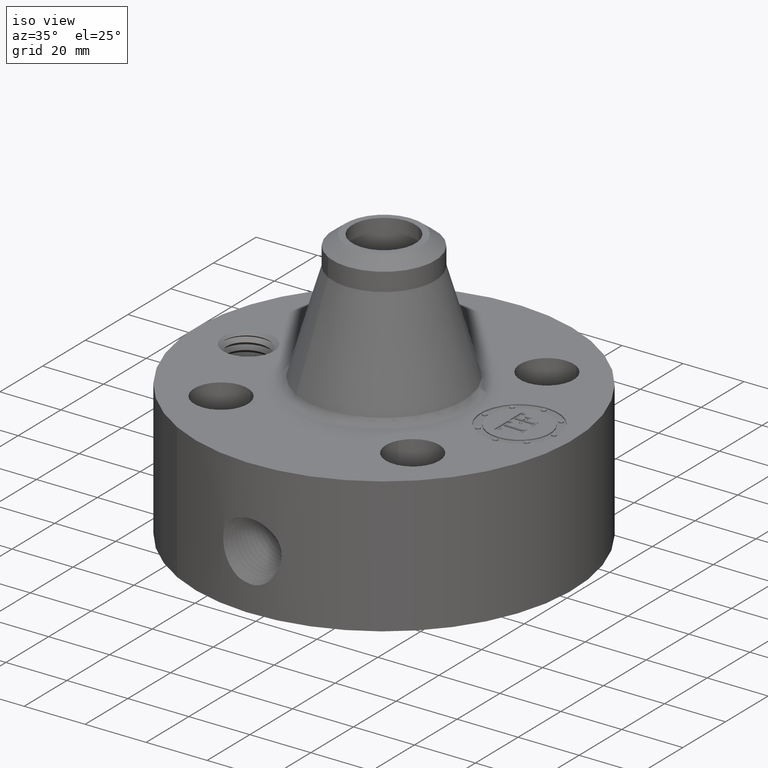
[diagram: clean part render]
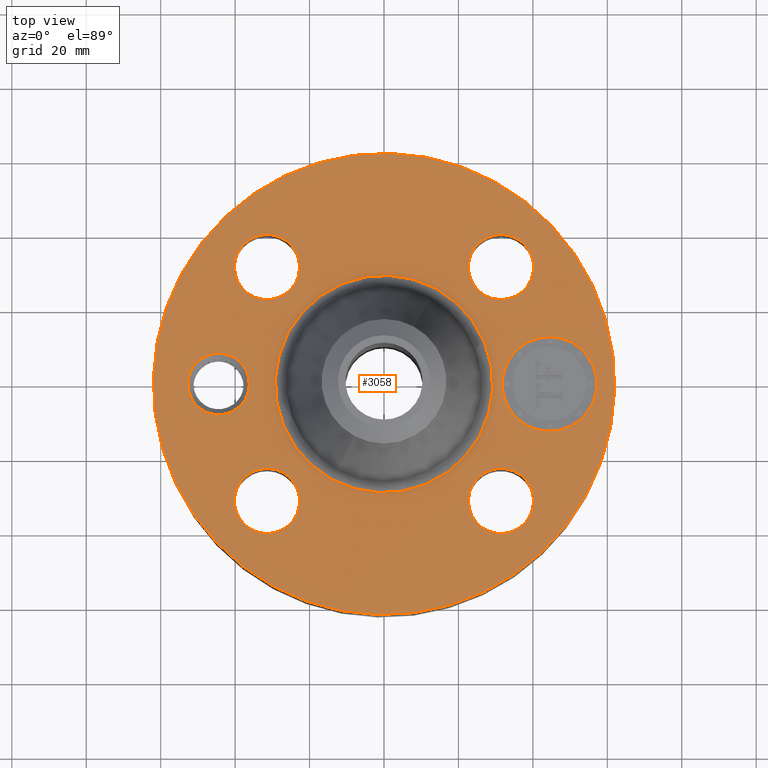
[diagram: tour spotlight — one face highlighted and labeled with its STEP entity id]
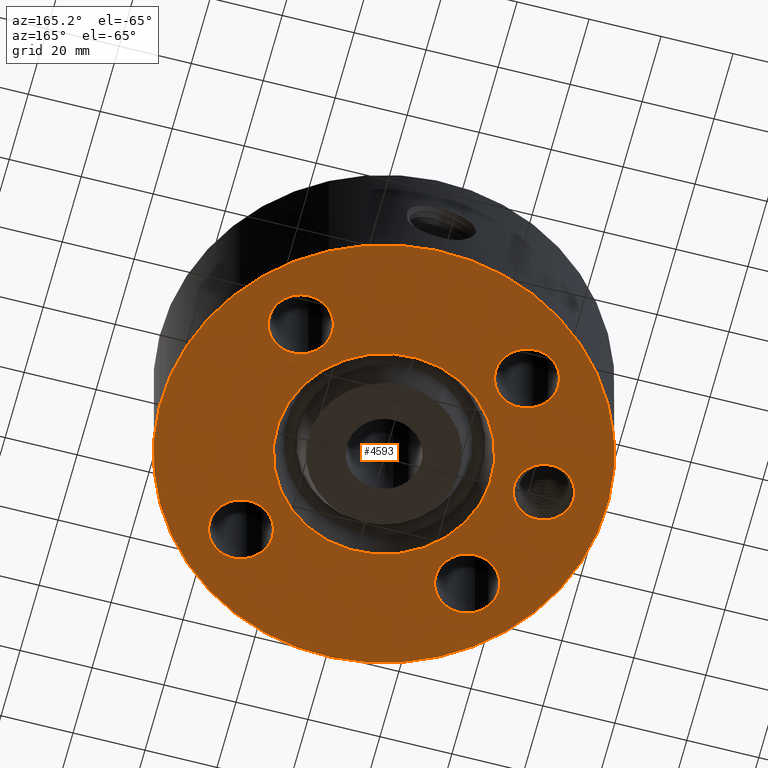
[diagram: tour spotlight — one face highlighted and labeled with its STEP entity id]
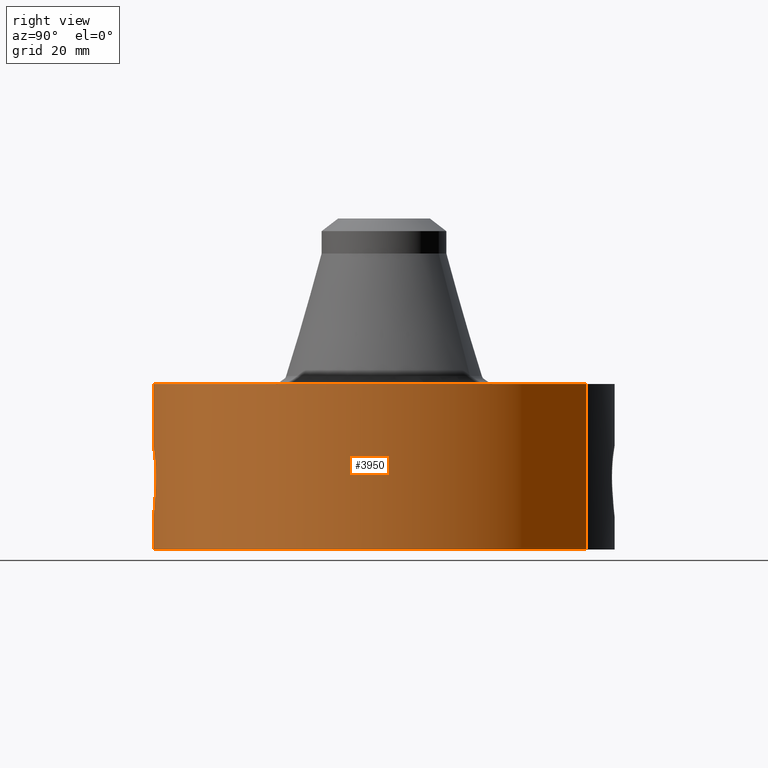
[diagram: tour spotlight — one face highlighted and labeled with its STEP entity id]
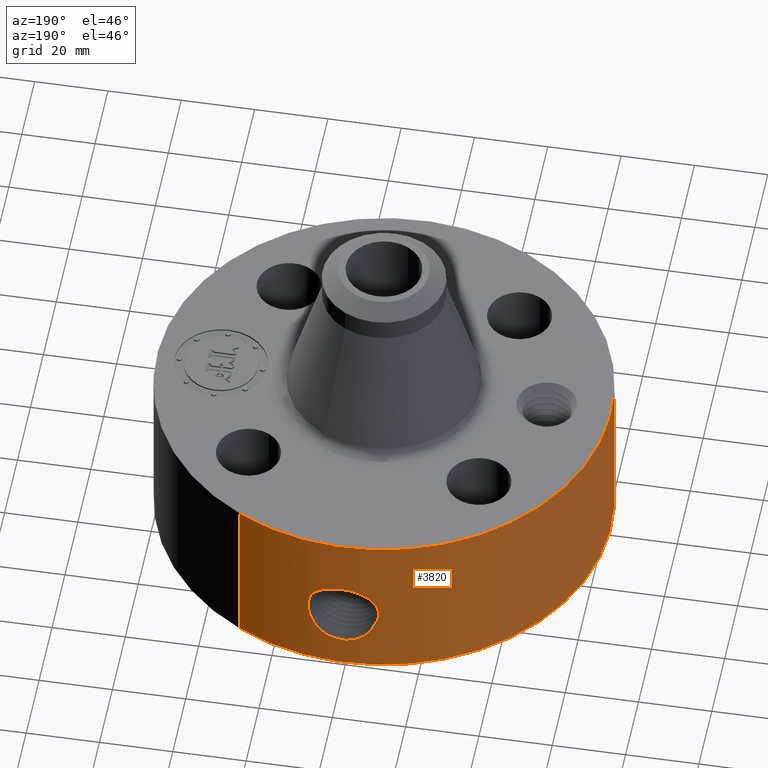
[diagram: tour spotlight — one face highlighted and labeled with its STEP entity id]
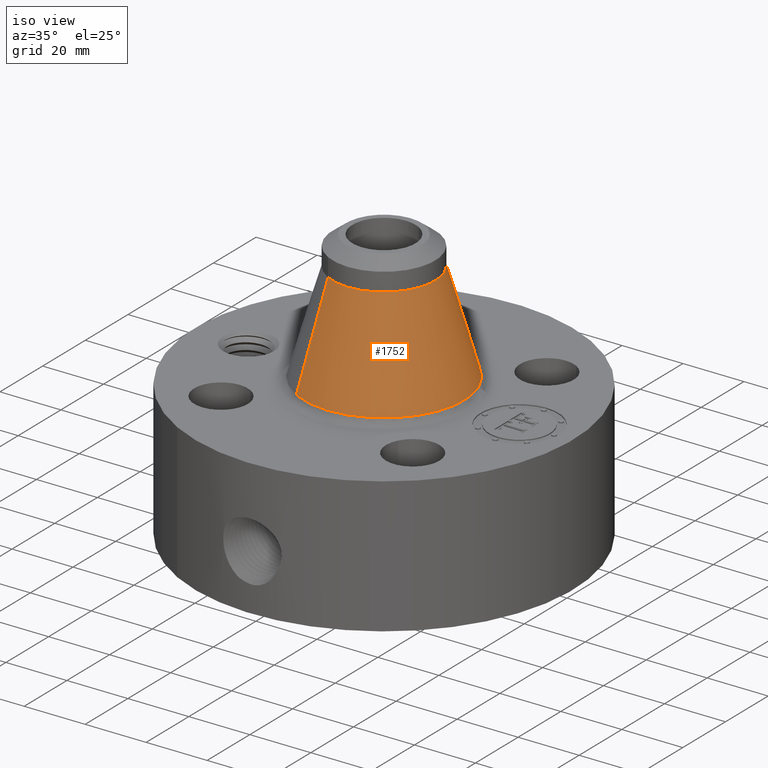
[diagram: tour spotlight — one face highlighted and labeled with its STEP entity id]
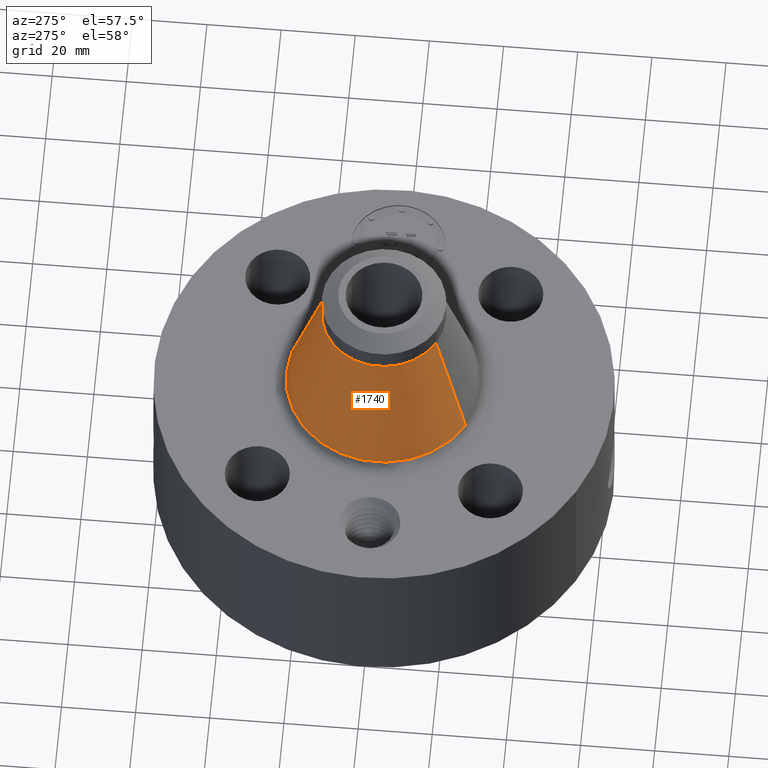
[diagram: tour spotlight — one face highlighted and labeled with its STEP entity id]
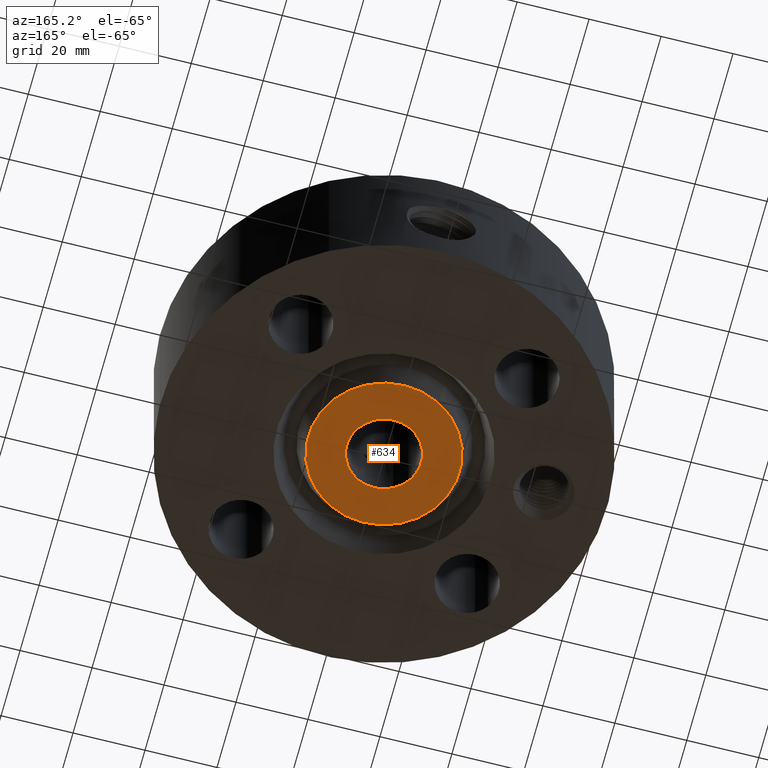
[diagram: tour spotlight — one face highlighted and labeled with its STEP entity id]
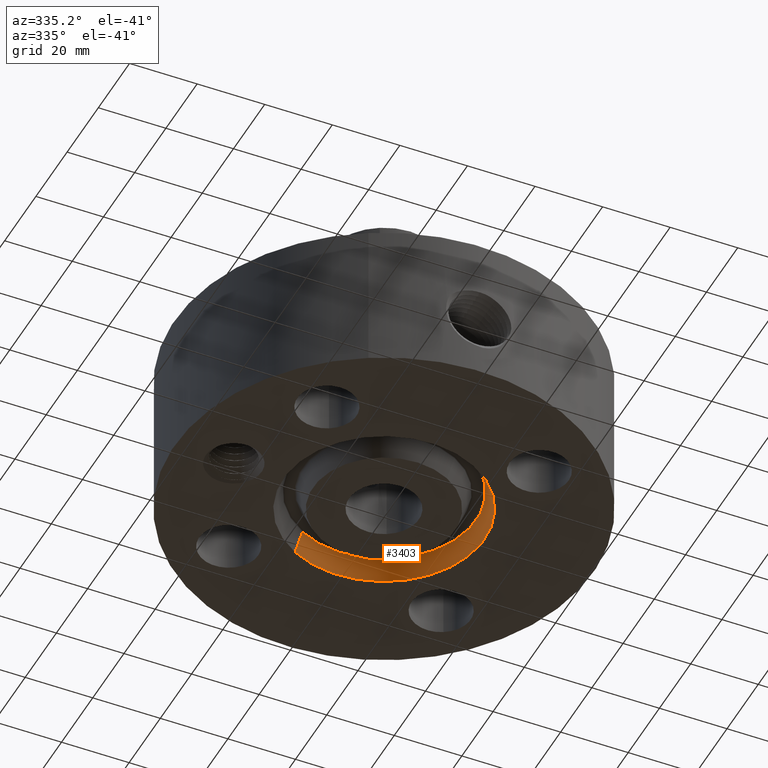
[diagram: tour spotlight — one face highlighted and labeled with its STEP entity id]
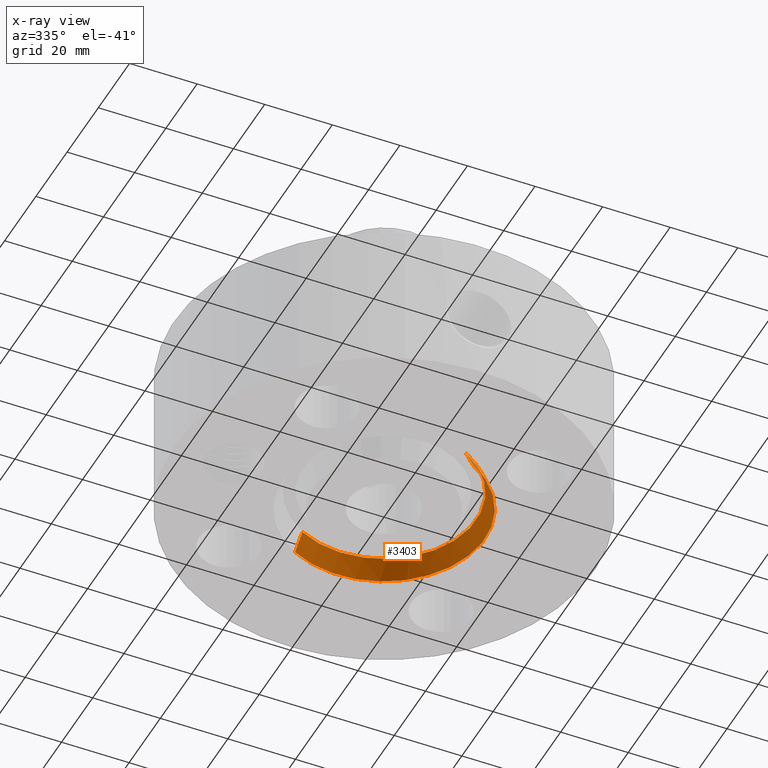
[diagram: x-ray of the same camera — body ghosted, this tour face saturated]
A machine part: a face-by-face anatomy tour. The part has 789 B-rep faces; the first image is the clean iso view, then the 8 largest visible faces are spotlighted one at a time (largest first), each with its STEP entity span.

Face 1 — top view, entity #3058. In plain terms, the highlighted planar face has unit normal (0, 0, -1).
Definition (entity closure, byte-faithful):
#2202=AXIS2_PLACEMENT_3D('Circle Axis2P3D',#2200,#2201,$) ;
#2228=AXIS2_PLACEMENT_3D('Circle Axis2P3D',#2226,#2227,$) ;
#2926=AXIS2_PLACEMENT_3D('Plane Axis2P3D',#2923,#2924,#2925) ;
#2930=AXIS2_PLACEMENT_3D('Circle Axis2P3D',#2928,#2929,$) ;
#2939=AXIS2_PLACEMENT_3D('Circle Axis2P3D',#2937,#2938,$) ;
#2948=AXIS2_PLACEMENT_3D('Circle Axis2P3D',#2946,#2947,$) ;
#2957=AXIS2_PLACEMENT_3D('Circle Axis2P3D',#2955,#2956,$) ;
#2966=AXIS2_PLACEMENT_3D('Circle Axis2P3D',#2964,#2965,$) ;
#2975=AXIS2_PLACEMENT_3D('Circle Axis2P3D',#2973,#2974,$) ;
#2988=AXIS2_PLACEMENT_3D('Circle Axis2P3D',#2986,#2987,$) ;
#2997=AXIS2_PLACEMENT_3D('Circle Axis2P3D',#2995,#2996,$) ;
#3006=AXIS2_PLACEMENT_3D('Circle Axis2P3D',#3004,#3005,$) ;
#3015=AXIS2_PLACEMENT_3D('Circle Axis2P3D',#3013,#3014,$) ;
#3024=AXIS2_PLACEMENT_3D('Circle Axis2P3D',#3022,#3023,$) ;
#3033=AXIS2_PLACEMENT_3D('Circle Axis2P3D',#3031,#3032,$) ;
#3042=AXIS2_PLACEMENT_3D('Circle Axis2P3D',#3040,#3041,$) ;
#3051=AXIS2_PLACEMENT_3D('Circle Axis2P3D',#3049,#3050,$) ;
#2200=CARTESIAN_POINT('Axis2P3D Location',(0.,0.,1.75000000001)) ;
#2204=CARTESIAN_POINT('Vertex',(-0.551418406817,-1.0093646232,1.75000000001)) ;
#2206=CARTESIAN_POINT('Vertex',(0.551418406817,1.0093646232,1.75000000001)) ;
#2226=CARTESIAN_POINT('Axis2P3D Location',(0.,0.,1.75000000001)) ;
#2923=CARTESIAN_POINT('Axis2P3D Location',(0.,2.44000000001,1.75000000001)) ;
#2928=CARTESIAN_POINT('Axis2P3D Location',(0.,0.,1.75000000001)) ;
#2932=CARTESIAN_POINT('Vertex',(1.1697983142,2.14130145102,1.75000000001)) ;
#2934=CARTESIAN_POINT('Vertex',(-1.1697983142,-2.14130145102,1.75000000001)) ;
#2937=CARTESIAN_POINT('Axis2P3D Location',(0.,0.,1.75000000001)) ;
#2946=CARTESIAN_POINT('Axis2P3D Location',(-1.75000000001,0.,1.75000000001)) ;
#2950=CARTESIAN_POINT('Vertex',(-2.03576282172,0.156112941009,1.75000000001)) ;
#2952=CARTESIAN_POINT('Vertex',(-1.46423717829,-0.156112941009,1.75000000001)) ;
#2955=CARTESIAN_POINT('Axis2P3D Location',(-1.75000000001,0.,1.75000000001)) ;
#2964=CARTESIAN_POINT('Axis2P3D Location',(1.23743686708,-1.23743686708,1.75000000001)) ;
#2968=CARTESIAN_POINT('Vertex',(0.934670883228,-1.07203505626,1.75000000001)) ;
#2970=CARTESIAN_POINT('Vertex',(1.54020285093,-1.4028386779,1.75000000001)) ;
#2973=CARTESIAN_POINT('Axis2P3D Location',(1.23743686708,-1.23743686708,1.75000000001)) ;
#2986=CARTESIAN_POINT('Axis2P3D Location',(-1.23743686708,-1.23743686708,1.75000000001)) ;
#2990=CARTESIAN_POINT('Vertex',(-1.4028386779,-1.54020285093,1.75000000001)) ;
#2992=CARTESIAN_POINT('Vertex',(-1.07203505626,-0.934670883228,1.75000000001)) ;
#2995=CARTESIAN_POINT('Axis2P3D Location',(-1.23743686708,-1.23743686708,1.75000000001)) ;
#3004=CARTESIAN_POINT('Axis2P3D Location',(-1.23743686708,1.23743686708,1.75000000001)) ;
#3008=CARTESIAN_POINT('Vertex',(-1.54020285093,1.4028386779,1.75000000001)) ;
#3010=CARTESIAN_POINT('Vertex',(-0.934670883228,1.07203505626,1.75000000001)) ;
#3013=CARTESIAN_POINT('Axis2P3D Location',(-1.23743686708,1.23743686708,1.75000000001)) ;
#3022=CARTESIAN_POINT('Axis2P3D Location',(1.23743686708,1.23743686708,1.75000000001)) ;
#3026=CARTESIAN_POINT('Vertex',(1.4028386779,1.54020285093,1.75000000001)) ;
#3028=CARTESIAN_POINT('Vertex',(1.07203505626,0.934670883228,1.75000000001)) ;
#3031=CARTESIAN_POINT('Axis2P3D Location',(1.23743686708,1.23743686708,1.75000000001)) ;
#3040=CARTESIAN_POINT('Axis2P3D Location',(1.75000000001,-4.19611851827E-015,1.75000000001)) ;
#3044=CARTESIAN_POINT('Vertex',(1.75000000001,0.499999995002,1.75000000001)) ;
#3046=CARTESIAN_POINT('Vertex',(1.75000000001,-0.499999995002,1.75000000001)) ;
#3049=CARTESIAN_POINT('Axis2P3D Location',(1.75000000001,-4.47585975282E-015,1.75000000001)) ;
#2201=DIRECTION('Axis2P3D Direction',(0.,0.,-0.0393700787402)) ;
#2227=DIRECTION('Axis2P3D Direction',(0.,0.,-0.0393700787402)) ;
#2924=DIRECTION('Axis2P3D Direction',(0.,0.,-0.0393700787402)) ;
#2925=DIRECTION('Axis2P3D XDirection',(0.0393700787402,0.,0.)) ;
#2929=DIRECTION('Axis2P3D Direction',(0.,0.,-0.0393700787402)) ;
#2938=DIRECTION('Axis2P3D Direction',(0.,0.,-0.0393700787402)) ;
#2947=DIRECTION('Axis2P3D Direction',(0.,0.,-0.0393700787402)) ;
#2956=DIRECTION('Axis2P3D Direction',(0.,0.,-0.0393700787402)) ;
#2965=DIRECTION('Axis2P3D Direction',(0.,0.,-0.0393700787402)) ;
#2974=DIRECTION('Axis2P3D Direction',(0.,0.,-0.0393700787402)) ;
#2987=DIRECTION('Axis2P3D Direction',(0.,0.,-0.0393700787402)) ;
#2996=DIRECTION('Axis2P3D Direction',(0.,0.,-0.0393700787402)) ;
#3005=DIRECTION('Axis2P3D Direction',(0.,0.,-0.0393700787402)) ;
#3014=DIRECTION('Axis2P3D Direction',(0.,0.,-0.0393700787402)) ;
#3023=DIRECTION('Axis2P3D Direction',(0.,0.,-0.0393700787402)) ;
#3032=DIRECTION('Axis2P3D Direction',(0.,0.,-0.0393700787402)) ;
#3041=DIRECTION('Axis2P3D Direction',(0.,0.,-0.0393700787402)) ;
#3050=DIRECTION('Axis2P3D Direction',(0.,0.,-0.0393700787402)) ;
#2943=ORIENTED_EDGE('',*,*,#2936,.F.) ;
#2944=ORIENTED_EDGE('',*,*,#2941,.F.) ;
#2961=ORIENTED_EDGE('',*,*,#2954,.T.) ;
#2962=ORIENTED_EDGE('',*,*,#2959,.T.) ;
#2979=ORIENTED_EDGE('',*,*,#2972,.T.) ;
#2980=ORIENTED_EDGE('',*,*,#2977,.T.) ;
#2983=ORIENTED_EDGE('',*,*,#2208,.T.) ;
#2984=ORIENTED_EDGE('',*,*,#2230,.T.) ;
#3001=ORIENTED_EDGE('',*,*,#2994,.T.) ;
#3002=ORIENTED_EDGE('',*,*,#2999,.T.) ;
#3019=ORIENTED_EDGE('',*,*,#3012,.T.) ;
#3020=ORIENTED_EDGE('',*,*,#3017,.T.) ;
#3037=ORIENTED_EDGE('',*,*,#3030,.T.) ;
#3038=ORIENTED_EDGE('',*,*,#3035,.T.) ;
#3055=ORIENTED_EDGE('',*,*,#3048,.T.) ;
#3056=ORIENTED_EDGE('',*,*,#3053,.T.) ;
#2963=FACE_BOUND('',#2960,.T.) ;
#2981=FACE_BOUND('',#2978,.T.) ;
#2985=FACE_BOUND('',#2982,.T.) ;
#3003=FACE_BOUND('',#3000,.T.) ;
#3021=FACE_BOUND('',#3018,.T.) ;
#3039=FACE_BOUND('',#3036,.T.) ;
#3057=FACE_BOUND('',#3054,.T.) ;
#3058=ADVANCED_FACE('PartBody',(#2945,#2963,#2981,#2985,#3003,#3021,#3039,#3057),#2927,.F.) ;
#2203=CIRCLE('generated circle',#2202,1.1501648586) ;
#2229=CIRCLE('generated circle',#2228,1.1501648586) ;
#2931=CIRCLE('generated circle',#2930,2.44000000001) ;
#2940=CIRCLE('generated circle',#2939,2.44000000001) ;
#2949=CIRCLE('generated circle',#2948,0.325625000001) ;
#2958=CIRCLE('generated circle',#2957,0.325625000001) ;
#2967=CIRCLE('generated circle',#2966,0.345000000001) ;
#2976=CIRCLE('generated circle',#2975,0.345000000001) ;
#2989=CIRCLE('generated circle',#2988,0.345000000001) ;
#2998=CIRCLE('generated circle',#2997,0.345000000001) ;
#3007=CIRCLE('generated circle',#3006,0.345000000001) ;
#3016=CIRCLE('generated circle',#3015,0.345000000001) ;
#3025=CIRCLE('generated circle',#3024,0.345000000001) ;
#3034=CIRCLE('generated circle',#3033,0.345000000001) ;
#3043=CIRCLE('generated circle',#3042,0.499999995002) ;
#3052=CIRCLE('generated circle',#3051,0.499999995002) ;
#2208=EDGE_CURVE('',#2205,#2207,#2203,.T.) ;
#2230=EDGE_CURVE('',#2207,#2205,#2229,.T.) ;
#2936=EDGE_CURVE('',#2933,#2935,#2931,.T.) ;
#2941=EDGE_CURVE('',#2935,#2933,#2940,.T.) ;
#2954=EDGE_CURVE('',#2951,#2953,#2949,.T.) ;
#2959=EDGE_CURVE('',#2953,#2951,#2958,.T.) ;
#2972=EDGE_CURVE('',#2969,#2971,#2967,.T.) ;
#2977=EDGE_CURVE('',#2971,#2969,#2976,.T.) ;
#2994=EDGE_CURVE('',#2991,#2993,#2989,.T.) ;
#2999=EDGE_CURVE('',#2993,#2991,#2998,.T.) ;
#3012=EDGE_CURVE('',#3009,#3011,#3007,.T.) ;
#3017=EDGE_CURVE('',#3011,#3009,#3016,.T.) ;
#3030=EDGE_CURVE('',#3027,#3029,#3025,.T.) ;
#3035=EDGE_CURVE('',#3029,#3027,#3034,.T.) ;
#3048=EDGE_CURVE('',#3045,#3047,#3043,.T.) ;
#3053=EDGE_CURVE('',#3047,#3045,#3052,.T.) ;
#2942=EDGE_LOOP('',(#2943,#2944)) ;
#2960=EDGE_LOOP('',(#2961,#2962)) ;
#2978=EDGE_LOOP('',(#2979,#2980)) ;
#2982=EDGE_LOOP('',(#2983,#2984)) ;
#3000=EDGE_LOOP('',(#3001,#3002)) ;
#3018=EDGE_LOOP('',(#3019,#3020)) ;
#3036=EDGE_LOOP('',(#3037,#3038)) ;
#3054=EDGE_LOOP('',(#3055,#3056)) ;
#2945=FACE_OUTER_BOUND('',#2942,.T.) ;
#2927=PLANE('',#2926) ;
#2205=VERTEX_POINT('',#2204) ;
#2207=VERTEX_POINT('',#2206) ;
#2933=VERTEX_POINT('',#2932) ;
#2935=VERTEX_POINT('',#2934) ;
#2951=VERTEX_POINT('',#2950) ;
#2953=VERTEX_POINT('',#2952) ;
#2969=VERTEX_POINT('',#2968) ;
#2971=VERTEX_POINT('',#2970) ;
#2991=VERTEX_POINT('',#2990) ;
#2993=VERTEX_POINT('',#2992) ;
#3009=VERTEX_POINT('',#3008) ;
#3011=VERTEX_POINT('',#3010) ;
#3027=VERTEX_POINT('',#3026) ;
#3029=VERTEX_POINT('',#3028) ;
#3045=VERTEX_POINT('',#3044) ;
#3047=VERTEX_POINT('',#3046) ;

Face 2 — auxiliary view, entity #4593. In plain terms, the highlighted planar face has unit normal (0, 0, -1).
Definition (entity closure, byte-faithful):
#610=AXIS2_PLACEMENT_3D('Plane Axis2P3D',#607,#608,#609) ;
#3380=AXIS2_PLACEMENT_3D('Circle Axis2P3D',#3378,#3379,$) ;
#3406=AXIS2_PLACEMENT_3D('Circle Axis2P3D',#3404,#3405,$) ;
#3679=AXIS2_PLACEMENT_3D('Circle Axis2P3D',#3677,#3678,$) ;
#3823=AXIS2_PLACEMENT_3D('Circle Axis2P3D',#3821,#3822,$) ;
#4098=AXIS2_PLACEMENT_3D('Circle Axis2P3D',#4096,#4097,$) ;
#4117=AXIS2_PLACEMENT_3D('Circle Axis2P3D',#4115,#4116,$) ;
#4141=AXIS2_PLACEMENT_3D('Circle Axis2P3D',#4139,#4140,$) ;
#4160=AXIS2_PLACEMENT_3D('Circle Axis2P3D',#4158,#4159,$) ;
#4184=AXIS2_PLACEMENT_3D('Circle Axis2P3D',#4182,#4183,$) ;
#4203=AXIS2_PLACEMENT_3D('Circle Axis2P3D',#4201,#4202,$) ;
#4227=AXIS2_PLACEMENT_3D('Circle Axis2P3D',#4225,#4226,$) ;
#4246=AXIS2_PLACEMENT_3D('Circle Axis2P3D',#4244,#4245,$) ;
#4557=AXIS2_PLACEMENT_3D('Circle Axis2P3D',#4555,#4556,$) ;
#4566=AXIS2_PLACEMENT_3D('Circle Axis2P3D',#4564,#4565,$) ;
#607=CARTESIAN_POINT('Axis2P3D Location',(0.,0.407500000002,0.)) ;
#3378=CARTESIAN_POINT('Axis2P3D Location',(0.,0.,0.)) ;
#3382=CARTESIAN_POINT('Vertex',(-0.561886731246,1.02852676254,0.)) ;
#3384=CARTESIAN_POINT('Vertex',(0.561886731246,-1.02852676254,3.49676543189E-017)) ;
#3404=CARTESIAN_POINT('Axis2P3D Location',(0.,0.,0.)) ;
#3677=CARTESIAN_POINT('Axis2P3D Location',(0.,0.,0.)) ;
#3681=CARTESIAN_POINT('Vertex',(-1.1697983142,-2.14130145102,0.)) ;
#3683=CARTESIAN_POINT('Vertex',(1.1697983142,2.14130145102,0.)) ;
#3821=CARTESIAN_POINT('Axis2P3D Location',(0.,0.,0.)) ;
#4093=CARTESIAN_POINT('Vertex',(1.54020285093,-1.4028386779,0.)) ;
#4096=CARTESIAN_POINT('Axis2P3D Location',(1.23743686708,-1.23743686708,0.)) ;
#4100=CARTESIAN_POINT('Vertex',(0.934670883228,-1.07203505626,0.)) ;
#4115=CARTESIAN_POINT('Axis2P3D Location',(1.23743686708,-1.23743686708,0.)) ;
#4136=CARTESIAN_POINT('Vertex',(-1.07203505626,-0.934670883228,0.)) ;
#4139=CARTESIAN_POINT('Axis2P3D Location',(-1.23743686708,-1.23743686708,0.)) ;
#4143=CARTESIAN_POINT('Vertex',(-1.4028386779,-1.54020285093,0.)) ;
#4158=CARTESIAN_POINT('Axis2P3D Location',(-1.23743686708,-1.23743686708,0.)) ;
#4179=CARTESIAN_POINT('Vertex',(-0.934670883228,1.07203505626,0.)) ;
#4182=CARTESIAN_POINT('Axis2P3D Location',(-1.23743686708,1.23743686708,0.)) ;
#4186=CARTESIAN_POINT('Vertex',(-1.54020285093,1.4028386779,0.)) ;
#4201=CARTESIAN_POINT('Axis2P3D Location',(-1.23743686708,1.23743686708,0.)) ;
#4222=CARTESIAN_POINT('Vertex',(1.07203505626,0.934670883228,0.)) ;
#4225=CARTESIAN_POINT('Axis2P3D Location',(1.23743686708,1.23743686708,0.)) ;
#4229=CARTESIAN_POINT('Vertex',(1.4028386779,1.54020285093,0.)) ;
#4244=CARTESIAN_POINT('Axis2P3D Location',(1.23743686708,1.23743686708,0.)) ;
#4555=CARTESIAN_POINT('Axis2P3D Location',(-1.75000000001,6.99353086378E-017,0.)) ;
#4559=CARTESIAN_POINT('Vertex',(-1.46423717829,-0.156112941009,0.)) ;
#4561=CARTESIAN_POINT('Vertex',(-2.03576282172,0.156112941009,0.)) ;
#4564=CARTESIAN_POINT('Axis2P3D Location',(-1.75000000001,6.99353086378E-017,0.)) ;
#608=DIRECTION('Axis2P3D Direction',(0.,0.,-0.0393700787402)) ;
#609=DIRECTION('Axis2P3D XDirection',(0.0393700787402,0.,0.)) ;
#3379=DIRECTION('Axis2P3D Direction',(0.,0.,-0.0393700787402)) ;
#3405=DIRECTION('Axis2P3D Direction',(0.,0.,-0.0393700787402)) ;
#3678=DIRECTION('Axis2P3D Direction',(0.,0.,-0.0393700787402)) ;
#3822=DIRECTION('Axis2P3D Direction',(0.,0.,-0.0393700787402)) ;
#4097=DIRECTION('Axis2P3D Direction',(0.,-0.,-0.0393700787402)) ;
#4116=DIRECTION('Axis2P3D Direction',(0.,-0.,-0.0393700787402)) ;
#4140=DIRECTION('Axis2P3D Direction',(0.,-0.,-0.0393700787402)) ;
#4159=DIRECTION('Axis2P3D Direction',(0.,-0.,-0.0393700787402)) ;
#4183=DIRECTION('Axis2P3D Direction',(-0.,0.,-0.0393700787402)) ;
#4202=DIRECTION('Axis2P3D Direction',(-0.,0.,-0.0393700787402)) ;
#4226=DIRECTION('Axis2P3D Direction',(0.,0.,-0.0393700787402)) ;
#4245=DIRECTION('Axis2P3D Direction',(0.,0.,-0.0393700787402)) ;
#4556=DIRECTION('Axis2P3D Direction',(0.,0.,-0.0393700787402)) ;
#4565=DIRECTION('Axis2P3D Direction',(0.,0.,-0.0393700787402)) ;
#4552=ORIENTED_EDGE('',*,*,#3685,.T.) ;
#4553=ORIENTED_EDGE('',*,*,#3825,.T.) ;
#4570=ORIENTED_EDGE('',*,*,#4563,.F.) ;
#4571=ORIENTED_EDGE('',*,*,#4568,.F.) ;
#4574=ORIENTED_EDGE('',*,*,#4102,.F.) ;
#4575=ORIENTED_EDGE('',*,*,#4119,.F.) ;
#4578=ORIENTED_EDGE('',*,*,#4145,.F.) ;
#4579=ORIENTED_EDGE('',*,*,#4162,.F.) ;
#4582=ORIENTED_EDGE('',*,*,#4188,.F.) ;
#4583=ORIENTED_EDGE('',*,*,#4205,.F.) ;
#4586=ORIENTED_EDGE('',*,*,#4231,.F.) ;
#4587=ORIENTED_EDGE('',*,*,#4248,.F.) ;
#4590=ORIENTED_EDGE('',*,*,#3408,.F.) ;
#4591=ORIENTED_EDGE('',*,*,#3386,.F.) ;
#4572=FACE_BOUND('',#4569,.T.) ;
#4576=FACE_BOUND('',#4573,.T.) ;
#4580=FACE_BOUND('',#4577,.T.) ;
#4584=FACE_BOUND('',#4581,.T.) ;
#4588=FACE_BOUND('',#4585,.T.) ;
#4592=FACE_BOUND('',#4589,.T.) ;
#4593=ADVANCED_FACE('PartBody',(#4554,#4572,#4576,#4580,#4584,#4588,#4592),#611,.T.) ;
#3381=CIRCLE('generated circle',#3380,1.172) ;
#3407=CIRCLE('generated circle',#3406,1.172) ;
#3680=CIRCLE('generated circle',#3679,2.44000000001) ;
#3824=CIRCLE('generated circle',#3823,2.44000000001) ;
#4099=CIRCLE('generated circle',#4098,0.345000000001) ;
#4118=CIRCLE('generated circle',#4117,0.345000000001) ;
#4142=CIRCLE('generated circle',#4141,0.345000000001) ;
#4161=CIRCLE('generated circle',#4160,0.345000000001) ;
#4185=CIRCLE('generated circle',#4184,0.345000000001) ;
#4204=CIRCLE('generated circle',#4203,0.345000000001) ;
#4228=CIRCLE('generated circle',#4227,0.345000000001) ;
#4247=CIRCLE('generated circle',#4246,0.345000000001) ;
#4558=CIRCLE('generated circle',#4557,0.325625000001) ;
#4567=CIRCLE('generated circle',#4566,0.325625000001) ;
#3386=EDGE_CURVE('',#3383,#3385,#3381,.T.) ;
#3408=EDGE_CURVE('',#3385,#3383,#3407,.T.) ;
#3685=EDGE_CURVE('',#3682,#3684,#3680,.T.) ;
#3825=EDGE_CURVE('',#3684,#3682,#3824,.T.) ;
#4102=EDGE_CURVE('',#4094,#4101,#4099,.T.) ;
#4119=EDGE_CURVE('',#4101,#4094,#4118,.T.) ;
#4145=EDGE_CURVE('',#4137,#4144,#4142,.T.) ;
#4162=EDGE_CURVE('',#4144,#4137,#4161,.T.) ;
#4188=EDGE_CURVE('',#4180,#4187,#4185,.T.) ;
#4205=EDGE_CURVE('',#4187,#4180,#4204,.T.) ;
#4231=EDGE_CURVE('',#4223,#4230,#4228,.T.) ;
#4248=EDGE_CURVE('',#4230,#4223,#4247,.T.) ;
#4563=EDGE_CURVE('',#4560,#4562,#4558,.T.) ;
#4568=EDGE_CURVE('',#4562,#4560,#4567,.T.) ;
#4551=EDGE_LOOP('',(#4552,#4553)) ;
#4569=EDGE_LOOP('',(#4570,#4571)) ;
#4573=EDGE_LOOP('',(#4574,#4575)) ;
#4577=EDGE_LOOP('',(#4578,#4579)) ;
#4581=EDGE_LOOP('',(#4582,#4583)) ;
#4585=EDGE_LOOP('',(#4586,#4587)) ;
#4589=EDGE_LOOP('',(#4590,#4591)) ;
#4554=FACE_OUTER_BOUND('',#4551,.T.) ;
#611=PLANE('',#610) ;
#3383=VERTEX_POINT('',#3382) ;
#3385=VERTEX_POINT('',#3384) ;
#3682=VERTEX_POINT('',#3681) ;
#3684=VERTEX_POINT('',#3683) ;
#4094=VERTEX_POINT('',#4093) ;
#4101=VERTEX_POINT('',#4100) ;
#4137=VERTEX_POINT('',#4136) ;
#4144=VERTEX_POINT('',#4143) ;
#4180=VERTEX_POINT('',#4179) ;
#4187=VERTEX_POINT('',#4186) ;
#4223=VERTEX_POINT('',#4222) ;
#4230=VERTEX_POINT('',#4229) ;
#4560=VERTEX_POINT('',#4559) ;
#4562=VERTEX_POINT('',#4561) ;

Face 3 — right view, entity #3950. In plain terms, the highlighted cylindrical surface (partial cylindrical patch) has radius 61.976 mm, axis along (0, 0, -1).
Definition (entity closure, byte-faithful):
#2930=AXIS2_PLACEMENT_3D('Circle Axis2P3D',#2928,#2929,$) ;
#3675=AXIS2_PLACEMENT_3D('Cylinder Axis2P3D',#3672,#3673,#3674) ;
#3823=AXIS2_PLACEMENT_3D('Circle Axis2P3D',#3821,#3822,$) ;
#2928=CARTESIAN_POINT('Axis2P3D Location',(0.,0.,1.75000000001)) ;
#2932=CARTESIAN_POINT('Vertex',(1.1697983142,2.14130145102,1.75000000001)) ;
#2934=CARTESIAN_POINT('Vertex',(-1.1697983142,-2.14130145102,1.75000000001)) ;
#3672=CARTESIAN_POINT('Axis2P3D Location',(0.,0.,1.75000000001)) ;
#3681=CARTESIAN_POINT('Vertex',(-1.1697983142,-2.14130145102,0.)) ;
#3683=CARTESIAN_POINT('Vertex',(1.1697983142,2.14130145102,0.)) ;
#3686=CARTESIAN_POINT('Line Origine',(-1.1697983142,-2.14130145102,0.875000000003)) ;
#3691=CARTESIAN_POINT('Line Origine',(1.1697983142,2.14130145102,0.875000000003)) ;
#3821=CARTESIAN_POINT('Axis2P3D Location',(0.,0.,0.)) ;
#3833=CARTESIAN_POINT('Control Point',(0.161921597663,-2.43462140717,1.06474245937)) ;
#3834=CARTESIAN_POINT('Control Point',(0.124761681235,-2.4370928358,1.08394650334)) ;
#3835=CARTESIAN_POINT('Control Point',(0.0845285028844,-2.43901250292,1.0973010247)) ;
#3836=CARTESIAN_POINT('Control Point',(0.0426266272224,-2.43998754964,1.10403308462)) ;
#3837=CARTESIAN_POINT('Control Point',(0.000718733642804,-2.43999989415,1.10411849633)) ;
#3838=CARTESIAN_POINT('Vertex',(0.161921603958,-2.43462140677,1.06474245628)) ;
#3840=CARTESIAN_POINT('Vertex',(0.000718469144955,-2.43999989423,1.10411850216)) ;
#3844=CARTESIAN_POINT('Control Point',(0.16989837306,-2.43407776024,1.06094225976)) ;
#3845=CARTESIAN_POINT('Control Point',(0.167252430961,-2.43426244672,1.06223769884)) ;
#3846=CARTESIAN_POINT('Control Point',(0.164593291318,-2.43444371839,1.06350443812)) ;
#3847=CARTESIAN_POINT('Control Point',(0.161921603304,-2.4346214068,1.06474245341)) ;
#3848=CARTESIAN_POINT('Vertex',(0.16989837306,-2.43407776024,1.06094225976)) ;
#3852=CARTESIAN_POINT('Control Point',(0.328116387489,-2.4178378019,0.618661723858)) ;
#3853=CARTESIAN_POINT('Control Point',(0.351266827743,-2.4146961359,0.657920672743)) ;
#3854=CARTESIAN_POINT('Control Point',(0.367537071205,-2.41220597726,0.701967162852)) ;
#3855=CARTESIAN_POINT('Control Point',(0.374754425763,-2.41102143699,0.749647117412)) ;
#3856=CARTESIAN_POINT('Control Point',(0.370017228773,-2.41184047688,0.818715678679)) ;
#3857=CARTESIAN_POINT('Control Point',(0.346589006548,-2.41527741699,0.882571964519)) ;
#3858=CARTESIAN_POINT('Control Point',(0.337668354668,-2.41655315485,0.901622048982)) ;
#3859=CARTESIAN_POINT('Control Point',(0.307764266319,-2.42066054448,0.953874985381)) ;
#3860=CARTESIAN_POINT('Control Point',(0.266998854199,-2.42558827079,0.998208638787)) ;
#3861=CARTESIAN_POINT('Control Point',(0.236947856093,-2.42878500543,1.02314596167)) ;
#3862=CARTESIAN_POINT('Control Point',(0.204355858351,-2.43167263137,1.04407205891)) ;
#3863=CARTESIAN_POINT('Control Point',(0.16989837306,-2.43407776024,1.06094225976)) ;
#3864=CARTESIAN_POINT('Vertex',(0.328116863787,-2.41783753267,0.618661777742)) ;
#3868=CARTESIAN_POINT('Control Point',(0.320424223991,-2.41886922274,0.600797421042)) ;
#3869=CARTESIAN_POINT('Control Point',(0.323151377016,-2.41850796059,0.606680957356)) ;
#3870=CARTESIAN_POINT('Control Point',(0.325717352531,-2.41816336849,0.612639984973)) ;
#3871=CARTESIAN_POINT('Control Point',(0.328118231475,-2.41783755166,0.618665577781)) ;
#3872=CARTESIAN_POINT('Vertex',(0.32042488499,-2.41886937056,0.600798487442)) ;
#3876=CARTESIAN_POINT('Control Point',(0.0268393762839,-2.43985238241,0.340897556554)) ;
#3877=CARTESIAN_POINT('Control Point',(0.111814843383,-2.43891761744,0.352087011189)) ;
#3878=CARTESIAN_POINT('Control Point',(0.192381419446,-2.4342320407,0.392047143259)) ;
#3879=CARTESIAN_POINT('Control Point',(0.253315060823,-2.42735806859,0.454291321928)) ;
#3880=CARTESIAN_POINT('Control Point',(0.2960420997,-2.42209909205,0.525167593064)) ;
#3881=CARTESIAN_POINT('Control Point',(0.320424554948,-2.4188691789,0.600798563388)) ;
#3882=CARTESIAN_POINT('Vertex',(0.0268393762839,-2.43985238241,0.340897556554)) ;
#3886=CARTESIAN_POINT('Control Point',(0.0268393762839,-2.43985238241,0.340897556554)) ;
#3887=CARTESIAN_POINT('Control Point',(0.0178847904718,-2.43995088652,0.340836461491)) ;
#3888=CARTESIAN_POINT('Control Point',(0.00893312174488,-2.44000001,0.340995456562)) ;
#3889=CARTESIAN_POINT('Control Point',(-2.72878353298E-006,-2.44000000001,0.341374667803)) ;
#3890=CARTESIAN_POINT('Vertex',(-2.72878353373E-006,-2.44000000001,0.341374667803)) ;
#3894=CARTESIAN_POINT('Control Point',(-0.165475449319,-2.43438244237,0.375082959451)) ;
#3895=CARTESIAN_POINT('Control Point',(-0.112561961608,-2.43797919981,0.354988749024)) ;
#3896=CARTESIAN_POINT('Control Point',(-0.0565391785842,-2.43999993678,0.343773908797)) ;
#3897=CARTESIAN_POINT('Control Point',(-2.72878353299E-006,-2.44000000001,0.341374667803)) ;
#3898=CARTESIAN_POINT('Vertex',(-0.165475449319,-2.43438244237,0.375082959451)) ;
#3902=CARTESIAN_POINT('Control Point',(-0.165475449319,-2.43438244237,0.375082959451)) ;
#3903=CARTESIAN_POINT('Control Point',(-0.175740355042,-2.43368469256,0.380334541078)) ;
#3904=CARTESIAN_POINT('Control Point',(-0.185738682548,-2.43293968557,0.386087518414)) ;
#3905=CARTESIAN_POINT('Control Point',(-0.195421989316,-2.43216164063,0.392285375744)) ;
#3906=CARTESIAN_POINT('Vertex',(-0.195421989316,-2.43216164063,0.392285375744)) ;
#3910=CARTESIAN_POINT('Control Point',(-0.195421989316,-2.43216164063,0.392285375744)) ;
#3911=CARTESIAN_POINT('Control Point',(-0.247998274293,-2.42793718365,0.425937136213)) ;
#3912=CARTESIAN_POINT('Control Point',(-0.293011532846,-2.42289055351,0.470601242799)) ;
#3913=CARTESIAN_POINT('Control Point',(-0.328229741817,-2.41805808377,0.522425706071)) ;
#3914=CARTESIAN_POINT('Control Point',(-0.382261846787,-2.41005605303,0.639676923917)) ;
#3915=CARTESIAN_POINT('Control Point',(-0.395270517986,-2.4077303253,0.768065726491)) ;
#3916=CARTESIAN_POINT('Control Point',(-0.390965859778,-2.40847371332,0.835617745363)) ;
#3917=CARTESIAN_POINT('Control Point',(-0.3754028488,-2.41110143568,0.902021538028)) ;
#3918=CARTESIAN_POINT('Control Point',(-0.348525603778,-2.41498031122,0.964426404841)) ;
#3919=CARTESIAN_POINT('Vertex',(-0.348525603778,-2.41498031122,0.964426404841)) ;
#3923=CARTESIAN_POINT('Control Point',(-0.348525603778,-2.41498031122,0.964426404841)) ;
#3924=CARTESIAN_POINT('Control Point',(-0.2943019289,-2.4228057742,1.02385968626)) ;
#3925=CARTESIAN_POINT('Control Point',(-0.226049800307,-2.43110253761,1.06810664465)) ;
#3926=CARTESIAN_POINT('Control Point',(-0.151999405677,-2.43708485742,1.09575225398)) ;
#3927=CARTESIAN_POINT('Control Point',(-0.075341423842,-2.44000079858,1.10784713779)) ;
#3928=CARTESIAN_POINT('Control Point',(2.58579354728E-005,-2.43999999987,1.10415298447)) ;
#3929=CARTESIAN_POINT('Vertex',(2.5857935474E-005,-2.43999999987,1.10415298447)) ;
#3933=CARTESIAN_POINT('Control Point',(0.000718469128843,-2.43999989423,1.10411850214)) ;
#3934=CARTESIAN_POINT('Control Point',(0.000372184810261,-2.4399999962,1.10413600914)) ;
#3935=CARTESIAN_POINT('Control Point',(2.58579482031E-005,-2.43999999987,1.10415298447)) ;
#2929=DIRECTION('Axis2P3D Direction',(0.,0.,-0.0393700787402)) ;
#3673=DIRECTION('Axis2P3D Direction',(0.,0.,-0.0393700787402)) ;
#3674=DIRECTION('Axis2P3D XDirection',(0.0188750212049,0.0345504945626,0.)) ;
#3687=DIRECTION('Vector Direction',(0.,0.,-0.0393700787402)) ;
#3692=DIRECTION('Vector Direction',(0.,0.,-0.0393700787402)) ;
#3822=DIRECTION('Axis2P3D Direction',(0.,0.,-0.0393700787402)) ;
#3688=VECTOR('Line Direction',#3687,0.0393700787402) ;
#3693=VECTOR('Line Direction',#3692,0.0393700787402) ;
#3827=ORIENTED_EDGE('',*,*,#3825,.F.) ;
#3828=ORIENTED_EDGE('',*,*,#3695,.T.) ;
#3829=ORIENTED_EDGE('',*,*,#2936,.T.) ;
#3830=ORIENTED_EDGE('',*,*,#3690,.F.) ;
#3938=ORIENTED_EDGE('',*,*,#3842,.F.) ;
#3939=ORIENTED_EDGE('',*,*,#3850,.F.) ;
#3940=ORIENTED_EDGE('',*,*,#3866,.F.) ;
#3941=ORIENTED_EDGE('',*,*,#3874,.F.) ;
#3942=ORIENTED_EDGE('',*,*,#3884,.F.) ;
#3943=ORIENTED_EDGE('',*,*,#3892,.T.) ;
#3944=ORIENTED_EDGE('',*,*,#3900,.F.) ;
#3945=ORIENTED_EDGE('',*,*,#3908,.T.) ;
#3946=ORIENTED_EDGE('',*,*,#3921,.T.) ;
#3947=ORIENTED_EDGE('',*,*,#3931,.T.) ;
#3948=ORIENTED_EDGE('',*,*,#3936,.F.) ;
#3949=FACE_BOUND('',#3937,.T.) ;
#3950=ADVANCED_FACE('PartBody',(#3831,#3949),#3676,.T.) ;
#3832=B_SPLINE_CURVE_WITH_KNOTS('',4,(#3833,#3834,#3835,#3836,#3837),.UNSPECIFIED.,.F.,.U.,(5,5),(0.175518111324,6.37462367102),.UNSPECIFIED.) ;
#3843=B_SPLINE_CURVE_WITH_KNOTS('',3,(#3844,#3845,#3846,#3847),.UNSPECIFIED.,.F.,.U.,(4,4),(0.,0.33015947179),.UNSPECIFIED.) ;
#3851=B_SPLINE_CURVE_WITH_KNOTS('',5,(#3852,#3853,#3854,#3855,#3856,#3857,#3858,#3859,#3860,#3861,#3862,#3863),.UNSPECIFIED.,.F.,.U.,(6,3,3,6),(0.,8.5309516162,12.3556757938,19.521658518),.UNSPECIFIED.) ;
#3867=B_SPLINE_CURVE_WITH_KNOTS('',3,(#3868,#3869,#3870,#3871),.UNSPECIFIED.,.F.,.U.,(4,4),(9.56540719936,10.2865899679),.UNSPECIFIED.) ;
#3875=B_SPLINE_CURVE_WITH_KNOTS('',5,(#3876,#3877,#3878,#3879,#3880,#3881),.UNSPECIFIED.,.F.,.U.,(6,6),(0.,14.8989645106),.UNSPECIFIED.) ;
#3885=B_SPLINE_CURVE_WITH_KNOTS('',3,(#3886,#3887,#3888,#3889),.UNSPECIFIED.,.F.,.U.,(4,4),(0.,0.933900822138),.UNSPECIFIED.) ;
#3893=B_SPLINE_CURVE_WITH_KNOTS('',3,(#3894,#3895,#3896,#3897),.UNSPECIFIED.,.F.,.U.,(4,4),(0.,5.90871980141),.UNSPECIFIED.) ;
#3901=B_SPLINE_CURVE_WITH_KNOTS('',3,(#3902,#3903,#3904,#3905),.UNSPECIFIED.,.F.,.U.,(4,4),(0.,1.20345894557),.UNSPECIFIED.) ;
#3909=B_SPLINE_CURVE_WITH_KNOTS('',5,(#3910,#3911,#3912,#3913,#3914,#3915,#3916,#3917,#3918),.UNSPECIFIED.,.F.,.U.,(6,3,6),(0.,10.8904603187,22.7389457003),.UNSPECIFIED.) ;
#3922=B_SPLINE_CURVE_WITH_KNOTS('',5,(#3923,#3924,#3925,#3926,#3927,#3928),.UNSPECIFIED.,.F.,.U.,(6,6),(0.,14.0876990613),.UNSPECIFIED.) ;
#3932=B_SPLINE_CURVE_WITH_KNOTS('',2,(#3933,#3934,#3935),.UNSPECIFIED.,.F.,.U.,(3,3),(1.28068418482,1.30657844044),.UNSPECIFIED.) ;
#2931=CIRCLE('generated circle',#2930,2.44000000001) ;
#3824=CIRCLE('generated circle',#3823,2.44000000001) ;
#3676=CYLINDRICAL_SURFACE('generated cylinder',#3675,2.44000000001) ;
#2936=EDGE_CURVE('',#2933,#2935,#2931,.T.) ;
#3690=EDGE_CURVE('',#3682,#2935,#3689,.F.) ;
#3695=EDGE_CURVE('',#3684,#2933,#3694,.F.) ;
#3825=EDGE_CURVE('',#3684,#3682,#3824,.T.) ;
#3842=EDGE_CURVE('',#3839,#3841,#3832,.T.) ;
#3850=EDGE_CURVE('',#3849,#3839,#3843,.T.) ;
#3866=EDGE_CURVE('',#3865,#3849,#3851,.T.) ;
#3874=EDGE_CURVE('',#3873,#3865,#3867,.T.) ;
#3884=EDGE_CURVE('',#3883,#3873,#3875,.T.) ;
#3892=EDGE_CURVE('',#3883,#3891,#3885,.T.) ;
#3900=EDGE_CURVE('',#3899,#3891,#3893,.T.) ;
#3908=EDGE_CURVE('',#3899,#3907,#3901,.T.) ;
#3921=EDGE_CURVE('',#3907,#3920,#3909,.T.) ;
#3931=EDGE_CURVE('',#3920,#3930,#3922,.T.) ;
#3936=EDGE_CURVE('',#3841,#3930,#3932,.T.) ;
#3826=EDGE_LOOP('',(#3827,#3828,#3829,#3830)) ;
#3937=EDGE_LOOP('',(#3938,#3939,#3940,#3941,#3942,#3943,#3944,#3945,#3946,#3947,#3948)) ;
#3831=FACE_OUTER_BOUND('',#3826,.T.) ;
#3689=LINE('Line',#3686,#3688) ;
#3694=LINE('Line',#3691,#3693) ;
#2933=VERTEX_POINT('',#2932) ;
#2935=VERTEX_POINT('',#2934) ;
#3682=VERTEX_POINT('',#3681) ;
#3684=VERTEX_POINT('',#3683) ;
#3839=VERTEX_POINT('',#3838) ;
#3841=VERTEX_POINT('',#3840) ;
#3849=VERTEX_POINT('',#3848) ;
#3865=VERTEX_POINT('',#3864) ;
#3873=VERTEX_POINT('',#3872) ;
#3883=VERTEX_POINT('',#3882) ;
#3891=VERTEX_POINT('',#3890) ;
#3899=VERTEX_POINT('',#3898) ;
#3907=VERTEX_POINT('',#3906) ;
#3920=VERTEX_POINT('',#3919) ;
#3930=VERTEX_POINT('',#3929) ;

Face 4 — auxiliary view, entity #3820. In plain terms, the highlighted cylindrical surface (partial cylindrical patch) has radius 61.976 mm, axis along (0, 0, -1).
Definition (entity closure, byte-faithful):
#2939=AXIS2_PLACEMENT_3D('Circle Axis2P3D',#2937,#2938,$) ;
#3675=AXIS2_PLACEMENT_3D('Cylinder Axis2P3D',#3672,#3673,#3674) ;
#3679=AXIS2_PLACEMENT_3D('Circle Axis2P3D',#3677,#3678,$) ;
#2932=CARTESIAN_POINT('Vertex',(1.1697983142,2.14130145102,1.75000000001)) ;
#2934=CARTESIAN_POINT('Vertex',(-1.1697983142,-2.14130145102,1.75000000001)) ;
#2937=CARTESIAN_POINT('Axis2P3D Location',(0.,0.,1.75000000001)) ;
#3672=CARTESIAN_POINT('Axis2P3D Location',(0.,0.,1.75000000001)) ;
#3677=CARTESIAN_POINT('Axis2P3D Location',(0.,0.,0.)) ;
#3681=CARTESIAN_POINT('Vertex',(-1.1697983142,-2.14130145102,0.)) ;
#3683=CARTESIAN_POINT('Vertex',(1.1697983142,2.14130145102,0.)) ;
#3686=CARTESIAN_POINT('Line Origine',(-1.1697983142,-2.14130145102,0.875000000003)) ;
#3691=CARTESIAN_POINT('Line Origine',(1.1697983142,2.14130145102,0.875000000003)) ;
#3703=CARTESIAN_POINT('Control Point',(-0.161921597663,2.43462140717,1.06474245937)) ;
#3704=CARTESIAN_POINT('Control Point',(-0.124761681234,2.4370928358,1.08394650334)) ;
#3705=CARTESIAN_POINT('Control Point',(-0.0845285028847,2.43901250292,1.0973010247)) ;
#3706=CARTESIAN_POINT('Control Point',(-0.0426266272238,2.43998754964,1.10403308462)) ;
#3707=CARTESIAN_POINT('Control Point',(-0.000718733642933,2.43999989415,1.10411849633)) ;
#3708=CARTESIAN_POINT('Vertex',(-0.161921603957,2.43462140677,1.06474245628)) ;
#3710=CARTESIAN_POINT('Vertex',(-0.00071846914496,2.43999989423,1.10411850216)) ;
#3714=CARTESIAN_POINT('Control Point',(-0.16989837306,2.43407776024,1.06094225976)) ;
#3715=CARTESIAN_POINT('Control Point',(-0.167252430961,2.43426244672,1.06223769884)) ;
#3716=CARTESIAN_POINT('Control Point',(-0.164593291317,2.43444371839,1.06350443812)) ;
#3717=CARTESIAN_POINT('Control Point',(-0.161921603303,2.4346214068,1.06474245341)) ;
#3718=CARTESIAN_POINT('Vertex',(-0.16989837306,2.43407776024,1.06094225976)) ;
#3722=CARTESIAN_POINT('Control Point',(-0.328116387489,2.4178378019,0.618661723858)) ;
#3723=CARTESIAN_POINT('Control Point',(-0.351266827742,2.4146961359,0.657920672741)) ;
#3724=CARTESIAN_POINT('Control Point',(-0.367537071202,2.41220597726,0.701967162848)) ;
#3725=CARTESIAN_POINT('Control Point',(-0.374754425763,2.41102143699,0.749647117416)) ;
#3726=CARTESIAN_POINT('Control Point',(-0.370017228773,2.41184047688,0.818715678679)) ;
#3727=CARTESIAN_POINT('Control Point',(-0.346589006549,2.41527741699,0.882571964515)) ;
#3728=CARTESIAN_POINT('Control Point',(-0.337668354666,2.41655315485,0.901622048985)) ;
#3729=CARTESIAN_POINT('Control Point',(-0.30776426632,2.42066054448,0.953874985381)) ;
#3730=CARTESIAN_POINT('Control Point',(-0.2669988542,2.42558827079,0.998208638784)) ;
#3731=CARTESIAN_POINT('Control Point',(-0.23694785609,2.42878500544,1.02314596168)) ;
#3732=CARTESIAN_POINT('Control Point',(-0.204355858349,2.43167263137,1.04407205891)) ;
#3733=CARTESIAN_POINT('Control Point',(-0.16989837306,2.43407776024,1.06094225976)) ;
#3734=CARTESIAN_POINT('Vertex',(-0.328116863787,2.41783753267,0.618661777742)) ;
#3738=CARTESIAN_POINT('Control Point',(-0.32042422399,2.41886922274,0.600797421047)) ;
#3739=CARTESIAN_POINT('Control Point',(-0.323151377015,2.41850796059,0.606680957362)) ;
#3740=CARTESIAN_POINT('Control Point',(-0.32571735253,2.41816336849,0.612639984979)) ;
#3741=CARTESIAN_POINT('Control Point',(-0.328118231473,2.41783755166,0.618665577787)) ;
#3742=CARTESIAN_POINT('Vertex',(-0.32042488499,2.41886937056,0.600798487442)) ;
#3746=CARTESIAN_POINT('Control Point',(-0.0268393762839,2.43985238241,0.340897556554)) ;
#3747=CARTESIAN_POINT('Control Point',(-0.11181484338,2.43891761744,0.352087011188)) ;
#3748=CARTESIAN_POINT('Control Point',(-0.192381419431,2.4342320407,0.392047143251)) ;
#3749=CARTESIAN_POINT('Control Point',(-0.253315060815,2.42735806859,0.454291321912)) ;
#3750=CARTESIAN_POINT('Control Point',(-0.296042099701,2.42209909205,0.525167593068)) ;
#3751=CARTESIAN_POINT('Control Point',(-0.320424554948,2.4188691789,0.600798563388)) ;
#3752=CARTESIAN_POINT('Vertex',(-0.0268393762839,2.43985238241,0.340897556554)) ;
#3756=CARTESIAN_POINT('Control Point',(-0.0268393762839,2.43985238241,0.340897556554)) ;
#3757=CARTESIAN_POINT('Control Point',(-0.0178847904718,2.43995088652,0.340836461491)) ;
#3758=CARTESIAN_POINT('Control Point',(-0.00893312174488,2.44000001,0.340995456562)) ;
#3759=CARTESIAN_POINT('Control Point',(2.72878352834E-006,2.44000000001,0.341374667803)) ;
#3760=CARTESIAN_POINT('Vertex',(2.72878353331E-006,2.44000000001,0.341374667803)) ;
#3764=CARTESIAN_POINT('Control Point',(0.165475449319,2.43438244237,0.375082959451)) ;
#3765=CARTESIAN_POINT('Control Point',(0.112561961607,2.43797919981,0.354988749023)) ;
#3766=CARTESIAN_POINT('Control Point',(0.0565391785854,2.43999993678,0.343773908797)) ;
#3767=CARTESIAN_POINT('Control Point',(2.72878353269E-006,2.44000000001,0.341374667803)) ;
#3768=CARTESIAN_POINT('Vertex',(0.165475449319,2.43438244237,0.375082959451)) ;
#3772=CARTESIAN_POINT('Control Point',(0.165475449319,2.43438244237,0.375082959451)) ;
#3773=CARTESIAN_POINT('Control Point',(0.175740355042,2.43368469256,0.380334541078)) ;
#3774=CARTESIAN_POINT('Control Point',(0.185738682548,2.43293968557,0.386087518414)) ;
#3775=CARTESIAN_POINT('Control Point',(0.195421989316,2.43216164063,0.392285375744)) ;
#3776=CARTESIAN_POINT('Vertex',(0.195421989316,2.43216164063,0.392285375744)) ;
#3780=CARTESIAN_POINT('Control Point',(0.195421989316,2.43216164063,0.392285375744)) ;
#3781=CARTESIAN_POINT('Control Point',(0.24799827429,2.42793718366,0.425937136211)) ;
#3782=CARTESIAN_POINT('Control Point',(0.293011532841,2.42289055351,0.470601242794)) ;
#3783=CARTESIAN_POINT('Control Point',(0.328229741818,2.41805808377,0.522425706074)) ;
#3784=CARTESIAN_POINT('Control Point',(0.382261846784,2.41005605303,0.639676923912)) ;
#3785=CARTESIAN_POINT('Control Point',(0.395270517985,2.4077303253,0.76806572648)) ;
#3786=CARTESIAN_POINT('Control Point',(0.390965859778,2.40847371332,0.835617745372)) ;
#3787=CARTESIAN_POINT('Control Point',(0.375402848798,2.41110143568,0.902021538032)) ;
#3788=CARTESIAN_POINT('Control Point',(0.348525603778,2.41498031122,0.964426404841)) ;
#3789=CARTESIAN_POINT('Vertex',(0.348525603778,2.41498031122,0.964426404841)) ;
#3793=CARTESIAN_POINT('Control Point',(0.348525603778,2.41498031122,0.964426404841)) ;
#3794=CARTESIAN_POINT('Control Point',(0.294301928901,2.4228057742,1.02385968626)) ;
#3795=CARTESIAN_POINT('Control Point',(0.226049800298,2.43110253761,1.06810664466)) ;
#3796=CARTESIAN_POINT('Control Point',(0.151999405677,2.43708485742,1.09575225398)) ;
#3797=CARTESIAN_POINT('Control Point',(0.0753414238401,2.44000079858,1.10784713779)) ;
#3798=CARTESIAN_POINT('Control Point',(-2.58579354753E-005,2.43999999987,1.10415298447)) ;
#3799=CARTESIAN_POINT('Vertex',(-2.58579354743E-005,2.43999999987,1.10415298447)) ;
#3803=CARTESIAN_POINT('Control Point',(-0.000718469128843,2.43999989423,1.10411850214)) ;
#3804=CARTESIAN_POINT('Control Point',(-0.000372184810261,2.4399999962,1.10413600914)) ;
#3805=CARTESIAN_POINT('Control Point',(-2.58579482019E-005,2.43999999987,1.10415298447)) ;
#2938=DIRECTION('Axis2P3D Direction',(0.,0.,-0.0393700787402)) ;
#3673=DIRECTION('Axis2P3D Direction',(0.,0.,-0.0393700787402)) ;
#3674=DIRECTION('Axis2P3D XDirection',(0.0188750212049,0.0345504945626,0.)) ;
#3678=DIRECTION('Axis2P3D Direction',(0.,0.,-0.0393700787402)) ;
#3687=DIRECTION('Vector Direction',(0.,0.,-0.0393700787402)) ;
#3692=DIRECTION('Vector Direction',(0.,0.,-0.0393700787402)) ;
#3688=VECTOR('Line Direction',#3687,0.0393700787402) ;
#3693=VECTOR('Line Direction',#3692,0.0393700787402) ;
#3697=ORIENTED_EDGE('',*,*,#3685,.F.) ;
#3698=ORIENTED_EDGE('',*,*,#3690,.T.) ;
#3699=ORIENTED_EDGE('',*,*,#2941,.T.) ;
#3700=ORIENTED_EDGE('',*,*,#3695,.F.) ;
#3808=ORIENTED_EDGE('',*,*,#3712,.F.) ;
#3809=ORIENTED_EDGE('',*,*,#3720,.F.) ;
#3810=ORIENTED_EDGE('',*,*,#3736,.F.) ;
#3811=ORIENTED_EDGE('',*,*,#3744,.F.) ;
#3812=ORIENTED_EDGE('',*,*,#3754,.F.) ;
#3813=ORIENTED_EDGE('',*,*,#3762,.T.) ;
#3814=ORIENTED_EDGE('',*,*,#3770,.F.) ;
#3815=ORIENTED_EDGE('',*,*,#3778,.T.) ;
#3816=ORIENTED_EDGE('',*,*,#3791,.T.) ;
#3817=ORIENTED_EDGE('',*,*,#3801,.T.) ;
#3818=ORIENTED_EDGE('',*,*,#3806,.F.) ;
#3819=FACE_BOUND('',#3807,.T.) ;
#3820=ADVANCED_FACE('PartBody',(#3701,#3819),#3676,.T.) ;
#3702=B_SPLINE_CURVE_WITH_KNOTS('',4,(#3703,#3704,#3705,#3706,#3707),.UNSPECIFIED.,.F.,.U.,(5,5),(0.175518111332,6.3746236711),.UNSPECIFIED.) ;
#3713=B_SPLINE_CURVE_WITH_KNOTS('',3,(#3714,#3715,#3716,#3717),.UNSPECIFIED.,.F.,.U.,(4,4),(0.,0.330159471807),.UNSPECIFIED.) ;
#3721=B_SPLINE_CURVE_WITH_KNOTS('',5,(#3722,#3723,#3724,#3725,#3726,#3727,#3728,#3729,#3730,#3731,#3732,#3733),.UNSPECIFIED.,.F.,.U.,(6,3,3,6),(0.,8.53095161579,12.3556757931,19.5216585169),.UNSPECIFIED.) ;
#3737=B_SPLINE_CURVE_WITH_KNOTS('',3,(#3738,#3739,#3740,#3741),.UNSPECIFIED.,.F.,.U.,(4,4),(9.56540719933,10.2865899673),.UNSPECIFIED.) ;
#3745=B_SPLINE_CURVE_WITH_KNOTS('',5,(#3746,#3747,#3748,#3749,#3750,#3751),.UNSPECIFIED.,.F.,.U.,(6,6),(0.,14.8989645099),.UNSPECIFIED.) ;
#3755=B_SPLINE_CURVE_WITH_KNOTS('',3,(#3756,#3757,#3758,#3759),.UNSPECIFIED.,.F.,.U.,(4,4),(0.,0.933900822138),.UNSPECIFIED.) ;
#3763=B_SPLINE_CURVE_WITH_KNOTS('',3,(#3764,#3765,#3766,#3767),.UNSPECIFIED.,.F.,.U.,(4,4),(0.,5.90871980153),.UNSPECIFIED.) ;
#3771=B_SPLINE_CURVE_WITH_KNOTS('',3,(#3772,#3773,#3774,#3775),.UNSPECIFIED.,.F.,.U.,(4,4),(0.,1.20345894557),.UNSPECIFIED.) ;
#3779=B_SPLINE_CURVE_WITH_KNOTS('',5,(#3780,#3781,#3782,#3783,#3784,#3785,#3786,#3787,#3788),.UNSPECIFIED.,.F.,.U.,(6,3,6),(0.,10.8904603181,22.738945699),.UNSPECIFIED.) ;
#3792=B_SPLINE_CURVE_WITH_KNOTS('',5,(#3793,#3794,#3795,#3796,#3797,#3798),.UNSPECIFIED.,.F.,.U.,(6,6),(0.,14.087699061),.UNSPECIFIED.) ;
#3802=B_SPLINE_CURVE_WITH_KNOTS('',2,(#3803,#3804,#3805),.UNSPECIFIED.,.F.,.U.,(3,3),(1.28068418482,1.30657844044),.UNSPECIFIED.) ;
#2940=CIRCLE('generated circle',#2939,2.44000000001) ;
#3680=CIRCLE('generated circle',#3679,2.44000000001) ;
#3676=CYLINDRICAL_SURFACE('generated cylinder',#3675,2.44000000001) ;
#2941=EDGE_CURVE('',#2935,#2933,#2940,.T.) ;
#3685=EDGE_CURVE('',#3682,#3684,#3680,.T.) ;
#3690=EDGE_CURVE('',#3682,#2935,#3689,.F.) ;
#3695=EDGE_CURVE('',#3684,#2933,#3694,.F.) ;
#3712=EDGE_CURVE('',#3709,#3711,#3702,.T.) ;
#3720=EDGE_CURVE('',#3719,#3709,#3713,.T.) ;
#3736=EDGE_CURVE('',#3735,#3719,#3721,.T.) ;
#3744=EDGE_CURVE('',#3743,#3735,#3737,.T.) ;
#3754=EDGE_CURVE('',#3753,#3743,#3745,.T.) ;
#3762=EDGE_CURVE('',#3753,#3761,#3755,.T.) ;
#3770=EDGE_CURVE('',#3769,#3761,#3763,.T.) ;
#3778=EDGE_CURVE('',#3769,#3777,#3771,.T.) ;
#3791=EDGE_CURVE('',#3777,#3790,#3779,.T.) ;
#3801=EDGE_CURVE('',#3790,#3800,#3792,.T.) ;
#3806=EDGE_CURVE('',#3711,#3800,#3802,.T.) ;
#3696=EDGE_LOOP('',(#3697,#3698,#3699,#3700)) ;
#3807=EDGE_LOOP('',(#3808,#3809,#3810,#3811,#3812,#3813,#3814,#3815,#3816,#3817,#3818)) ;
#3701=FACE_OUTER_BOUND('',#3696,.T.) ;
#3689=LINE('Line',#3686,#3688) ;
#3694=LINE('Line',#3691,#3693) ;
#2933=VERTEX_POINT('',#2932) ;
#2935=VERTEX_POINT('',#2934) ;
#3682=VERTEX_POINT('',#3681) ;
#3684=VERTEX_POINT('',#3683) ;
#3709=VERTEX_POINT('',#3708) ;
#3711=VERTEX_POINT('',#3710) ;
#3719=VERTEX_POINT('',#3718) ;
#3735=VERTEX_POINT('',#3734) ;
#3743=VERTEX_POINT('',#3742) ;
#3753=VERTEX_POINT('',#3752) ;
#3761=VERTEX_POINT('',#3760) ;
#3769=VERTEX_POINT('',#3768) ;
#3777=VERTEX_POINT('',#3776) ;
#3790=VERTEX_POINT('',#3789) ;
#3800=VERTEX_POINT('',#3799) ;

Face 5 — iso view, entity #1752. In plain terms, the highlighted conical surface has half-angle 16.16 deg.
Definition (entity closure, byte-faithful):
#1376=AXIS2_PLACEMENT_3D('Circle Axis2P3D',#1374,#1375,$) ;
#1713=AXIS2_PLACEMENT_3D('Cone Axis2P3D',#1710,#1711,#1712) ;
#1743=AXIS2_PLACEMENT_3D('Circle Axis2P3D',#1741,#1742,$) ;
#1351=CARTESIAN_POINT('Vertex',(0.31642085548,0.57920449085,3.13044891098)) ;
#1358=CARTESIAN_POINT('Vertex',(-0.31642085548,-0.57920449085,3.13044891098)) ;
#1374=CARTESIAN_POINT('Axis2P3D Location',(0.,0.,3.13044891098)) ;
#1710=CARTESIAN_POINT('Axis2P3D Location',(0.,0.,3.13044891098)) ;
#1719=CARTESIAN_POINT('Vertex',(-0.496160361728,-0.908215450144,1.83660249647)) ;
#1721=CARTESIAN_POINT('Vertex',(0.496160361728,0.908215450144,1.83660249647)) ;
#1724=CARTESIAN_POINT('Line Origine',(-0.406290608604,-0.743709970497,2.48352570373)) ;
#1729=CARTESIAN_POINT('Line Origine',(0.406290608604,0.743709970497,2.48352570373)) ;
#1741=CARTESIAN_POINT('Axis2P3D Location',(0.,0.,1.83660249647)) ;
#1375=DIRECTION('Axis2P3D Direction',(0.,0.,-0.0393700787402)) ;
#1711=DIRECTION('Axis2P3D Direction',(0.,0.,-0.0393700787402)) ;
#1712=DIRECTION('Axis2P3D XDirection',(0.0188750212049,0.0345504945626,0.)) ;
#1725=DIRECTION('Vector Direction',(-0.00525315489493,-0.00961583553542,-0.0378145893884)) ;
#1730=DIRECTION('Vector Direction',(0.00525315489493,0.00961583553542,-0.0378145893884)) ;
#1742=DIRECTION('Axis2P3D Direction',(0.,0.,-0.0393700787402)) ;
#1726=VECTOR('Line Direction',#1725,0.0393700787402) ;
#1731=VECTOR('Line Direction',#1730,0.0393700787402) ;
#1747=ORIENTED_EDGE('',*,*,#1745,.F.) ;
#1748=ORIENTED_EDGE('',*,*,#1733,.T.) ;
#1749=ORIENTED_EDGE('',*,*,#1378,.T.) ;
#1750=ORIENTED_EDGE('',*,*,#1728,.F.) ;
#1752=ADVANCED_FACE('PartBody',(#1751),#1714,.T.) ;
#1377=CIRCLE('generated circle',#1376,0.660000000003) ;
#1744=CIRCLE('generated circle',#1743,1.03490599014) ;
#1714=CONICAL_SURFACE('Cone',#1713,0.660000000003,0.282036776844) ;
#1378=EDGE_CURVE('',#1352,#1359,#1377,.T.) ;
#1728=EDGE_CURVE('',#1720,#1359,#1727,.F.) ;
#1733=EDGE_CURVE('',#1722,#1352,#1732,.F.) ;
#1745=EDGE_CURVE('',#1722,#1720,#1744,.T.) ;
#1746=EDGE_LOOP('',(#1747,#1748,#1749,#1750)) ;
#1751=FACE_OUTER_BOUND('',#1746,.T.) ;
#1727=LINE('Line',#1724,#1726) ;
#1732=LINE('Line',#1729,#1731) ;
#1352=VERTEX_POINT('',#1351) ;
#1359=VERTEX_POINT('',#1358) ;
#1720=VERTEX_POINT('',#1719) ;
#1722=VERTEX_POINT('',#1721) ;

Face 6 — auxiliary view, entity #1740. In plain terms, the highlighted conical surface has half-angle 16.16 deg.
Definition (entity closure, byte-faithful):
#1356=AXIS2_PLACEMENT_3D('Circle Axis2P3D',#1354,#1355,$) ;
#1713=AXIS2_PLACEMENT_3D('Cone Axis2P3D',#1710,#1711,#1712) ;
#1717=AXIS2_PLACEMENT_3D('Circle Axis2P3D',#1715,#1716,$) ;
#1351=CARTESIAN_POINT('Vertex',(0.31642085548,0.57920449085,3.13044891098)) ;
#1354=CARTESIAN_POINT('Axis2P3D Location',(0.,0.,3.13044891098)) ;
#1358=CARTESIAN_POINT('Vertex',(-0.31642085548,-0.57920449085,3.13044891098)) ;
#1710=CARTESIAN_POINT('Axis2P3D Location',(0.,0.,3.13044891098)) ;
#1715=CARTESIAN_POINT('Axis2P3D Location',(0.,0.,1.83660249647)) ;
#1719=CARTESIAN_POINT('Vertex',(-0.496160361728,-0.908215450144,1.83660249647)) ;
#1721=CARTESIAN_POINT('Vertex',(0.496160361728,0.908215450144,1.83660249647)) ;
#1724=CARTESIAN_POINT('Line Origine',(-0.406290608604,-0.743709970497,2.48352570373)) ;
#1729=CARTESIAN_POINT('Line Origine',(0.406290608604,0.743709970497,2.48352570373)) ;
#1355=DIRECTION('Axis2P3D Direction',(0.,0.,-0.0393700787402)) ;
#1711=DIRECTION('Axis2P3D Direction',(0.,0.,-0.0393700787402)) ;
#1712=DIRECTION('Axis2P3D XDirection',(0.0188750212049,0.0345504945626,0.)) ;
#1716=DIRECTION('Axis2P3D Direction',(0.,0.,-0.0393700787402)) ;
#1725=DIRECTION('Vector Direction',(-0.00525315489493,-0.00961583553542,-0.0378145893884)) ;
#1730=DIRECTION('Vector Direction',(0.00525315489493,0.00961583553542,-0.0378145893884)) ;
#1726=VECTOR('Line Direction',#1725,0.0393700787402) ;
#1731=VECTOR('Line Direction',#1730,0.0393700787402) ;
#1735=ORIENTED_EDGE('',*,*,#1723,.F.) ;
#1736=ORIENTED_EDGE('',*,*,#1728,.T.) ;
#1737=ORIENTED_EDGE('',*,*,#1360,.T.) ;
#1738=ORIENTED_EDGE('',*,*,#1733,.F.) ;
#1740=ADVANCED_FACE('PartBody',(#1739),#1714,.T.) ;
#1357=CIRCLE('generated circle',#1356,0.660000000003) ;
#1718=CIRCLE('generated circle',#1717,1.03490599014) ;
#1714=CONICAL_SURFACE('Cone',#1713,0.660000000003,0.282036776844) ;
#1360=EDGE_CURVE('',#1359,#1352,#1357,.T.) ;
#1723=EDGE_CURVE('',#1720,#1722,#1718,.T.) ;
#1728=EDGE_CURVE('',#1720,#1359,#1727,.F.) ;
#1733=EDGE_CURVE('',#1722,#1352,#1732,.F.) ;
#1734=EDGE_LOOP('',(#1735,#1736,#1737,#1738)) ;
#1739=FACE_OUTER_BOUND('',#1734,.T.) ;
#1727=LINE('Line',#1724,#1726) ;
#1732=LINE('Line',#1729,#1731) ;
#1352=VERTEX_POINT('',#1351) ;
#1359=VERTEX_POINT('',#1358) ;
#1720=VERTEX_POINT('',#1719) ;
#1722=VERTEX_POINT('',#1721) ;

Face 7 — auxiliary view, entity #634. In plain terms, the highlighted planar face has unit normal (0, 0, -1).
Definition (entity closure, byte-faithful):
#258=AXIS2_PLACEMENT_3D('Circle Axis2P3D',#256,#257,$) ;
#549=AXIS2_PLACEMENT_3D('Circle Axis2P3D',#547,#548,$) ;
#610=AXIS2_PLACEMENT_3D('Plane Axis2P3D',#607,#608,#609) ;
#614=AXIS2_PLACEMENT_3D('Circle Axis2P3D',#612,#613,$) ;
#623=AXIS2_PLACEMENT_3D('Circle Axis2P3D',#621,#622,$) ;
#253=CARTESIAN_POINT('Vertex',(0.195365906982,0.357614893972,2.79741234551E-016)) ;
#256=CARTESIAN_POINT('Axis2P3D Location',(0.,0.,-5.59482469102E-016)) ;
#260=CARTESIAN_POINT('Vertex',(-0.195365906982,-0.357614893972,2.79741234551E-016)) ;
#547=CARTESIAN_POINT('Axis2P3D Location',(0.,0.,-5.59482469102E-016)) ;
#607=CARTESIAN_POINT('Axis2P3D Location',(0.,0.407500000002,0.)) ;
#612=CARTESIAN_POINT('Axis2P3D Location',(0.,0.,0.)) ;
#616=CARTESIAN_POINT('Vertex',(-0.396964345966,0.726638361248,0.)) ;
#618=CARTESIAN_POINT('Vertex',(0.396964345966,-0.726638361248,0.)) ;
#621=CARTESIAN_POINT('Axis2P3D Location',(6.99353086378E-017,0.,0.)) ;
#257=DIRECTION('Axis2P3D Direction',(0.,0.,-0.0393700787402)) ;
#548=DIRECTION('Axis2P3D Direction',(0.,0.,-0.0393700787402)) ;
#608=DIRECTION('Axis2P3D Direction',(0.,0.,-0.0393700787402)) ;
#609=DIRECTION('Axis2P3D XDirection',(0.0393700787402,0.,0.)) ;
#613=DIRECTION('Axis2P3D Direction',(0.,0.,-0.0393700787402)) ;
#622=DIRECTION('Axis2P3D Direction',(0.,0.,-0.0393700787402)) ;
#627=ORIENTED_EDGE('',*,*,#620,.T.) ;
#628=ORIENTED_EDGE('',*,*,#625,.T.) ;
#631=ORIENTED_EDGE('',*,*,#262,.F.) ;
#632=ORIENTED_EDGE('',*,*,#551,.F.) ;
#633=FACE_BOUND('',#630,.T.) ;
#634=ADVANCED_FACE('PartBody',(#629,#633),#611,.T.) ;
#259=CIRCLE('generated circle',#258,0.407500000002) ;
#550=CIRCLE('generated circle',#549,0.407500000002) ;
#615=CIRCLE('generated circle',#614,0.828000000003) ;
#624=CIRCLE('generated circle',#623,0.828000000003) ;
#262=EDGE_CURVE('',#254,#261,#259,.T.) ;
#551=EDGE_CURVE('',#261,#254,#550,.T.) ;
#620=EDGE_CURVE('',#617,#619,#615,.T.) ;
#625=EDGE_CURVE('',#619,#617,#624,.T.) ;
#626=EDGE_LOOP('',(#627,#628)) ;
#630=EDGE_LOOP('',(#631,#632)) ;
#629=FACE_OUTER_BOUND('',#626,.T.) ;
#611=PLANE('',#610) ;
#254=VERTEX_POINT('',#253) ;
#261=VERTEX_POINT('',#260) ;
#617=VERTEX_POINT('',#616) ;
#619=VERTEX_POINT('',#618) ;

Face 8 — auxiliary view, entity #3403. An x-ray twin of the same camera follows (body ghosted, this face saturated) — the face is partly hidden behind the body. In plain terms, the highlighted conical surface has half-angle 23 deg.
Definition (entity closure, byte-faithful):
#2621=AXIS2_PLACEMENT_3D('Circle Axis2P3D',#2619,#2620,$) ;
#3376=AXIS2_PLACEMENT_3D('Cone Axis2P3D',#3373,#3374,#3375) ;
#3380=AXIS2_PLACEMENT_3D('Circle Axis2P3D',#3378,#3379,$) ;
#2619=CARTESIAN_POINT('Axis2P3D Location',(0.,0.,0.231112664984)) ;
#2623=CARTESIAN_POINT('Vertex',(0.514854363898,-0.942434591585,0.231112664984)) ;
#2625=CARTESIAN_POINT('Vertex',(-0.514854363898,0.942434591585,0.231112664984)) ;
#3373=CARTESIAN_POINT('Axis2P3D Location',(0.,0.,0.231112664984)) ;
#3378=CARTESIAN_POINT('Axis2P3D Location',(0.,0.,0.)) ;
#3382=CARTESIAN_POINT('Vertex',(-0.561886731246,1.02852676254,0.)) ;
#3384=CARTESIAN_POINT('Vertex',(0.561886731246,-1.02852676254,3.49676543189E-017)) ;
#3387=CARTESIAN_POINT('Line Origine',(0.538370547572,-0.985480677062,0.115556332492)) ;
#3392=CARTESIAN_POINT('Line Origine',(-0.538370547572,0.985480677062,0.115556332492)) ;
#2620=DIRECTION('Axis2P3D Direction',(0.,0.,0.0393700787402)) ;
#3374=DIRECTION('Axis2P3D Direction',(-0.,-0.,-0.0393700787402)) ;
#3375=DIRECTION('Axis2P3D XDirection',(0.0188750212049,-0.0345504945626,0.)) ;
#3379=DIRECTION('Axis2P3D Direction',(0.,0.,-0.0393700787402)) ;
#3388=DIRECTION('Vector Direction',(0.00737505833565,-0.0134999537303,-0.0362403485611)) ;
#3393=DIRECTION('Vector Direction',(-0.00737505833565,0.0134999537303,-0.0362403485611)) ;
#3389=VECTOR('Line Direction',#3388,0.0393700787402) ;
#3394=VECTOR('Line Direction',#3393,0.0393700787402) ;
#3398=ORIENTED_EDGE('',*,*,#3386,.T.) ;
#3399=ORIENTED_EDGE('',*,*,#3391,.T.) ;
#3400=ORIENTED_EDGE('',*,*,#2627,.T.) ;
#3401=ORIENTED_EDGE('',*,*,#3396,.F.) ;
#3403=ADVANCED_FACE('PartBody',(#3402),#3377,.F.) ;
#2622=CIRCLE('generated circle',#2621,1.07389849401) ;
#3381=CIRCLE('generated circle',#3380,1.172) ;
#3377=CONICAL_SURFACE('Cone',#3376,1.07389849401,0.401425727959) ;
#2627=EDGE_CURVE('',#2624,#2626,#2622,.T.) ;
#3386=EDGE_CURVE('',#3383,#3385,#3381,.T.) ;
#3391=EDGE_CURVE('',#3385,#2624,#3390,.F.) ;
#3396=EDGE_CURVE('',#3383,#2626,#3395,.F.) ;
#3397=EDGE_LOOP('',(#3398,#3399,#3400,#3401)) ;
#3402=FACE_OUTER_BOUND('',#3397,.T.) ;
#3390=LINE('Line',#3387,#3389) ;
#3395=LINE('Line',#3392,#3394) ;
#2624=VERTEX_POINT('',#2623) ;
#2626=VERTEX_POINT('',#2625) ;
#3383=VERTEX_POINT('',#3382) ;
#3385=VERTEX_POINT('',#3384) ;